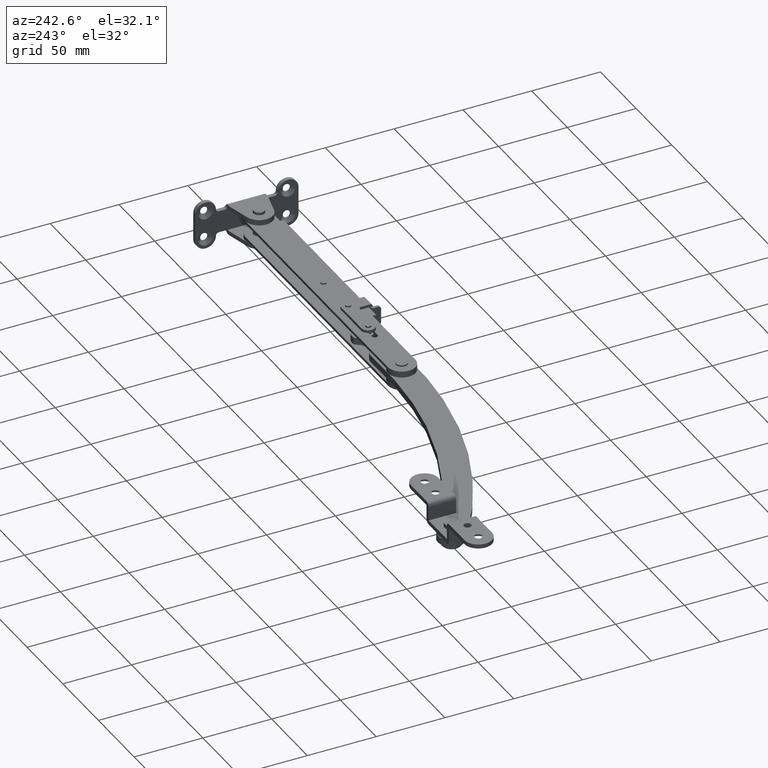
[diagram: clean part render]
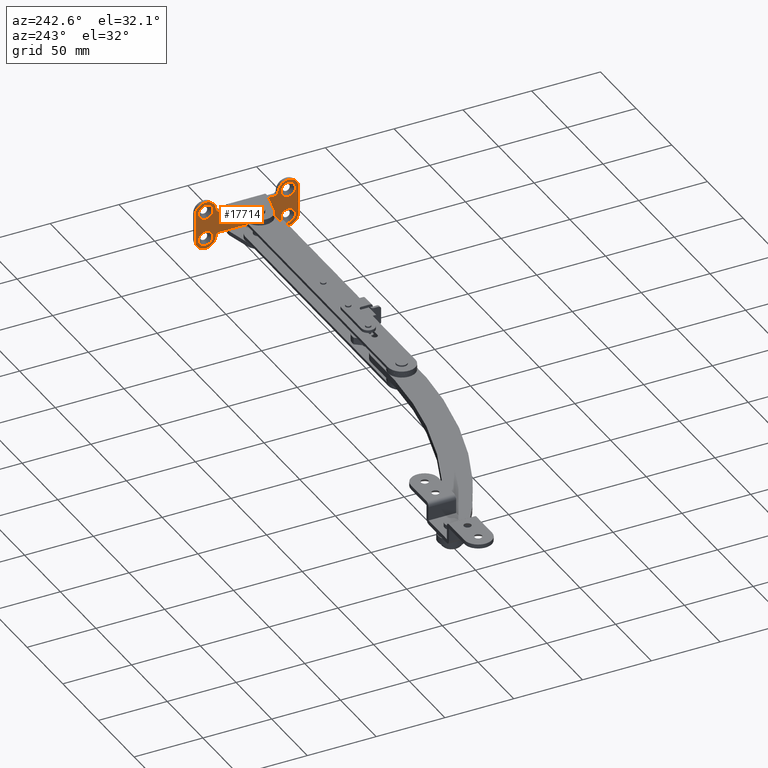
[diagram: same view with one face highlighted and labeled with its STEP entity id]
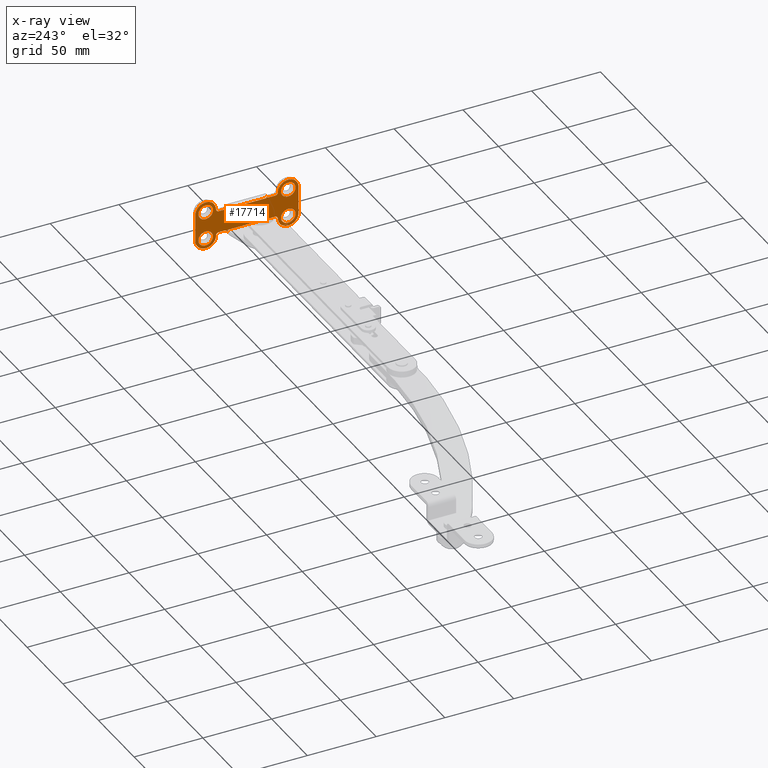
[diagram: x-ray of the same camera — body ghosted, the highlighted face saturated]
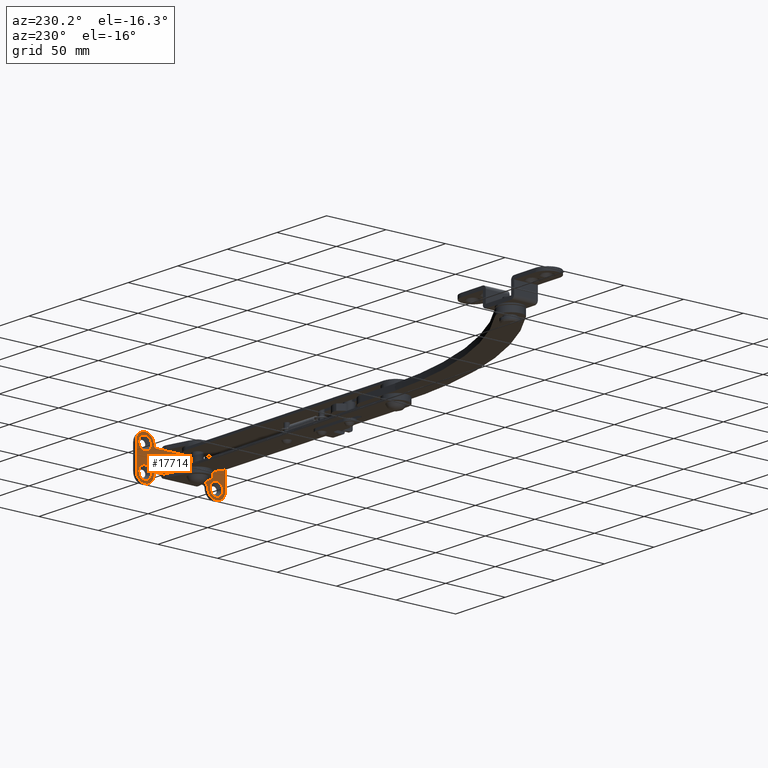
[diagram: same view with one face highlighted and labeled with its STEP entity id]
A machine part, auxiliary view. The second image highlights one B-rep face of the part: STEP entity #17714.
The next image is the same camera in x-ray: the body ghosted, the highlighted face saturated — about 0% of this face is hidden behind the body in this view.
A second angle (auxiliary view) of the same face is appended — the face is thin or edge-on in the first view.
In plain terms, the highlighted face is a freeform B-spline surface patch.
Its self-contained STEP definition (entity closure, byte-faithful):
#14583=CARTESIAN_POINT('',(16.999999998435499,24.716338118710649,-9.584166779639613));
#14584=VERTEX_POINT('',#14583);
#14590=CARTESIAN_POINT('',(17.0,30.0,-4.699999988079189));
#14591=VERTEX_POINT('',#14590);
#14592=CARTESIAN_POINT('',(17.0,30.0,-4.699999988079189));
#14593=CARTESIAN_POINT('',(16.999999999999996,25.100730405412151,-4.699999988079189));
#14594=CARTESIAN_POINT('',(16.999999998435499,24.716338118710645,-9.584166779639613));
#14602=(BOUNDED_CURVE()B_SPLINE_CURVE(2,(#14592,#14593,#14594),.UNSPECIFIED.,.F.,.U.)B_SPLINE_CURVE_WITH_KNOTS((3,3),(0.0,0.236331299857682),.UNSPECIFIED.)CURVE()GEOMETRIC_REPRESENTATION_ITEM()RATIONAL_B_SPLINE_CURVE((1.0,0.723120659513265,0.969723354554272))REPRESENTATION_ITEM(''));
#14603=EDGE_CURVE('',#14591,#14584,#14602,.T.);
#14605=CARTESIAN_POINT('',(16.999999998435499,35.283661881289362,-10.415833220360630));
#14606=VERTEX_POINT('',#14605);
#14607=CARTESIAN_POINT('',(16.999999998435499,35.283661881289355,-10.415833220360637));
#14608=CARTESIAN_POINT('',(16.999999999999996,35.300000011920936,-10.208237579609454));
#14609=CARTESIAN_POINT('',(17.0,35.300000011920929,-10.000000000000121));
#14610=CARTESIAN_POINT('',(17.000000000000007,35.300000011920936,-4.699999988079189));
#14611=CARTESIAN_POINT('',(17.0,30.0,-4.699999988079189));
#14619=(BOUNDED_CURVE()B_SPLINE_CURVE(2,(#14607,#14608,#14609,#14610,#14611),.UNSPECIFIED.,.F.,.U.)B_SPLINE_CURVE_WITH_KNOTS((3,2,3),(0.736331299857682,0.750000000000000,1.0),.UNSPECIFIED.)CURVE()GEOMETRIC_REPRESENTATION_ITEM()RATIONAL_B_SPLINE_CURVE((0.969723354554272,0.983986121673282,1.0,0.707106781186547,1.0))REPRESENTATION_ITEM(''));
#14620=EDGE_CURVE('',#14606,#14591,#14619,.T.);
#14657=CARTESIAN_POINT('',(17.0,30.0,-15.300000011921050));
#14658=VERTEX_POINT('',#14657);
#14659=CARTESIAN_POINT('',(17.0,30.0,-15.300000011921050));
#14660=CARTESIAN_POINT('',(17.000000000000011,34.899269594587849,-15.300000011921050));
#14661=CARTESIAN_POINT('',(16.999999998435502,35.283661881289348,-10.415833220360629));
#14669=(BOUNDED_CURVE()B_SPLINE_CURVE(2,(#14659,#14660,#14661),.UNSPECIFIED.,.F.,.U.)B_SPLINE_CURVE_WITH_KNOTS((3,3),(0.500000000000000,0.736331299857682),.UNSPECIFIED.)CURVE()GEOMETRIC_REPRESENTATION_ITEM()RATIONAL_B_SPLINE_CURVE((1.0,0.723120659513266,0.969723354554272))REPRESENTATION_ITEM(''));
#14670=EDGE_CURVE('',#14658,#14606,#14669,.T.);
#14672=CARTESIAN_POINT('',(16.999999998435495,24.716338118710642,-9.584166779639613));
#14673=CARTESIAN_POINT('',(17.000000000000004,24.699999988079071,-9.791762420390793));
#14674=CARTESIAN_POINT('',(17.0,24.699999988079071,-10.000000000000121));
#14675=CARTESIAN_POINT('',(17.000000000000007,24.699999988079067,-15.300000011921048));
#14676=CARTESIAN_POINT('',(17.0,30.0,-15.300000011921050));
#14684=(BOUNDED_CURVE()B_SPLINE_CURVE(2,(#14672,#14673,#14674,#14675,#14676),.UNSPECIFIED.,.F.,.U.)B_SPLINE_CURVE_WITH_KNOTS((3,2,3),(0.236331299857682,0.250000000000000,0.500000000000000),.UNSPECIFIED.)CURVE()GEOMETRIC_REPRESENTATION_ITEM()RATIONAL_B_SPLINE_CURVE((0.969723354554272,0.983986121673282,1.0,0.707106781186547,1.0))REPRESENTATION_ITEM(''));
#14685=EDGE_CURVE('',#14584,#14658,#14684,.T.);
#14911=CARTESIAN_POINT('',(16.999999998435499,24.716338118710649,10.415833220360510));
#14912=VERTEX_POINT('',#14911);
#14918=CARTESIAN_POINT('',(17.0,30.0,15.300000011920931));
#14919=VERTEX_POINT('',#14918);
#14920=CARTESIAN_POINT('',(17.0,30.0,15.300000011920931));
#14921=CARTESIAN_POINT('',(16.999999999999996,25.100730405412151,15.300000011920927));
#14922=CARTESIAN_POINT('',(16.999999998435499,24.716338118710645,10.415833220360511));
#14930=(BOUNDED_CURVE()B_SPLINE_CURVE(2,(#14920,#14921,#14922),.UNSPECIFIED.,.F.,.U.)B_SPLINE_CURVE_WITH_KNOTS((3,3),(0.0,0.236331299857682),.UNSPECIFIED.)CURVE()GEOMETRIC_REPRESENTATION_ITEM()RATIONAL_B_SPLINE_CURVE((1.0,0.723120659513265,0.969723354554272))REPRESENTATION_ITEM(''));
#14931=EDGE_CURVE('',#14919,#14912,#14930,.T.);
#14933=CARTESIAN_POINT('',(16.999999998435499,35.283661881289362,9.584166779639492));
#14934=VERTEX_POINT('',#14933);
#14935=CARTESIAN_POINT('',(16.999999998435499,35.283661881289355,9.584166779639492));
#14936=CARTESIAN_POINT('',(16.999999999999996,35.300000011920936,9.791762420390668));
#14937=CARTESIAN_POINT('',(17.0,35.300000011920929,10.0));
#14938=CARTESIAN_POINT('',(17.000000000000007,35.300000011920936,15.300000011920934));
#14939=CARTESIAN_POINT('',(17.0,30.0,15.300000011920931));
#14947=(BOUNDED_CURVE()B_SPLINE_CURVE(2,(#14935,#14936,#14937,#14938,#14939),.UNSPECIFIED.,.F.,.U.)B_SPLINE_CURVE_WITH_KNOTS((3,2,3),(0.736331299857682,0.750000000000000,1.0),.UNSPECIFIED.)CURVE()GEOMETRIC_REPRESENTATION_ITEM()RATIONAL_B_SPLINE_CURVE((0.969723354554272,0.983986121673282,1.0,0.707106781186547,1.0))REPRESENTATION_ITEM(''));
#14948=EDGE_CURVE('',#14934,#14919,#14947,.T.);
#14985=CARTESIAN_POINT('',(17.0,30.0,4.699999988079070));
#14986=VERTEX_POINT('',#14985);
#14987=CARTESIAN_POINT('',(17.0,30.0,4.699999988079070));
#14988=CARTESIAN_POINT('',(17.000000000000011,34.899269594587849,4.699999988079071));
#14989=CARTESIAN_POINT('',(16.999999998435502,35.283661881289348,9.584166779639492));
#14997=(BOUNDED_CURVE()B_SPLINE_CURVE(2,(#14987,#14988,#14989),.UNSPECIFIED.,.F.,.U.)B_SPLINE_CURVE_WITH_KNOTS((3,3),(0.500000000000000,0.736331299857682),.UNSPECIFIED.)CURVE()GEOMETRIC_REPRESENTATION_ITEM()RATIONAL_B_SPLINE_CURVE((1.0,0.723120659513266,0.969723354554272))REPRESENTATION_ITEM(''));
#14998=EDGE_CURVE('',#14986,#14934,#14997,.T.);
#15000=CARTESIAN_POINT('',(16.999999998435495,24.716338118710642,10.415833220360510));
#15001=CARTESIAN_POINT('',(17.000000000000004,24.699999988079071,10.208237579609333));
#15002=CARTESIAN_POINT('',(17.0,24.699999988079071,10.0));
#15003=CARTESIAN_POINT('',(17.000000000000007,24.699999988079067,4.699999988079070));
#15004=CARTESIAN_POINT('',(17.0,30.0,4.699999988079070));
#15012=(BOUNDED_CURVE()B_SPLINE_CURVE(2,(#15000,#15001,#15002,#15003,#15004),.UNSPECIFIED.,.F.,.U.)B_SPLINE_CURVE_WITH_KNOTS((3,2,3),(0.236331299857682,0.250000000000000,0.500000000000000),.UNSPECIFIED.)CURVE()GEOMETRIC_REPRESENTATION_ITEM()RATIONAL_B_SPLINE_CURVE((0.969723354554272,0.983986121673282,1.0,0.707106781186547,1.0))REPRESENTATION_ITEM(''));
#15013=EDGE_CURVE('',#14912,#14986,#15012,.T.);
#15258=CARTESIAN_POINT('',(16.999999998614982,-24.737049498336280,-9.374418544008481));
#15259=VERTEX_POINT('',#15258);
#15265=CARTESIAN_POINT('',(17.0,-30.0,-15.300000011921050));
#15266=VERTEX_POINT('',#15265);
#15267=CARTESIAN_POINT('',(16.999999998614982,-24.737049498336283,-9.374418544008481));
#15268=CARTESIAN_POINT('',(17.000000000000004,-24.699999988079067,-9.686112154285182));
#15269=CARTESIAN_POINT('',(17.0,-24.699999988079071,-10.000000000000121));
#15270=CARTESIAN_POINT('',(17.000000000000007,-24.699999988079067,-15.300000011921048));
#15271=CARTESIAN_POINT('',(17.0,-30.0,-15.300000011921050));
#15279=(BOUNDED_CURVE()B_SPLINE_CURVE(2,(#15267,#15268,#15269,#15270,#15271),.UNSPECIFIED.,.F.,.U.)B_SPLINE_CURVE_WITH_KNOTS((3,2,3),(0.229562472825864,0.250000000000000,0.500000000000000),.UNSPECIFIED.)CURVE()GEOMETRIC_REPRESENTATION_ITEM()RATIONAL_B_SPLINE_CURVE((0.956026752835888,0.976055947525520,1.0,0.707106781186547,1.0))REPRESENTATION_ITEM(''));
#15280=EDGE_CURVE('',#15259,#15266,#15279,.T.);
#15282=CARTESIAN_POINT('',(16.999999999730701,-35.290114443681077,-10.323557262278790));
#15283=VERTEX_POINT('',#15282);
#15284=CARTESIAN_POINT('',(17.0,-30.0,-15.300000011921050));
#15285=CARTESIAN_POINT('',(17.000000000000004,-34.985742162037880,-15.300000011921052));
#15286=CARTESIAN_POINT('',(16.999999999730701,-35.290114443681084,-10.323557262278790));
#15294=(BOUNDED_CURVE()B_SPLINE_CURVE(2,(#15284,#15285,#15286),.UNSPECIFIED.,.F.,.U.)B_SPLINE_CURVE_WITH_KNOTS((3,3),(0.500000000000000,0.739332962111518),.UNSPECIFIED.)CURVE()GEOMETRIC_REPRESENTATION_ITEM()RATIONAL_B_SPLINE_CURVE((1.0,0.719603993435998,0.976072041393622))REPRESENTATION_ITEM(''));
#15295=EDGE_CURVE('',#15266,#15283,#15294,.T.);
#15329=CARTESIAN_POINT('',(17.0,-30.0,-4.699999988079189));
#15330=VERTEX_POINT('',#15329);
#15331=CARTESIAN_POINT('',(16.999999999730704,-35.290114443681077,-10.323557262278793));
#15332=CARTESIAN_POINT('',(16.999999999999996,-35.300000011920936,-10.161929647852194));
#15333=CARTESIAN_POINT('',(17.0,-35.300000011920929,-10.000000000000121));
#15334=CARTESIAN_POINT('',(17.000000000000007,-35.300000011920936,-4.699999988079189));
#15335=CARTESIAN_POINT('',(17.0,-30.0,-4.699999988079189));
#15343=(BOUNDED_CURVE()B_SPLINE_CURVE(2,(#15331,#15332,#15333,#15334,#15335),.UNSPECIFIED.,.F.,.U.)B_SPLINE_CURVE_WITH_KNOTS((3,2,3),(0.739332962111518,0.750000000000000,1.0),.UNSPECIFIED.)CURVE()GEOMETRIC_REPRESENTATION_ITEM()RATIONAL_B_SPLINE_CURVE((0.976072041393623,0.987502787750550,1.0,0.707106781186547,1.0))REPRESENTATION_ITEM(''));
#15344=EDGE_CURVE('',#15283,#15330,#15343,.T.);
#15346=CARTESIAN_POINT('',(17.0,-30.0,-4.699999988079189));
#15347=CARTESIAN_POINT('',(17.000000000000011,-25.292675021217910,-4.699999988079189));
#15348=CARTESIAN_POINT('',(16.999999998614982,-24.737049498336287,-9.374418544008481));
#15356=(BOUNDED_CURVE()B_SPLINE_CURVE(2,(#15346,#15347,#15348),.UNSPECIFIED.,.F.,.U.)B_SPLINE_CURVE_WITH_KNOTS((3,3),(0.0,0.229562472825864),.UNSPECIFIED.)CURVE()GEOMETRIC_REPRESENTATION_ITEM()RATIONAL_B_SPLINE_CURVE((1.0,0.731050833661028,0.956026752835888))REPRESENTATION_ITEM(''));
#15357=EDGE_CURVE('',#15330,#15259,#15356,.T.);
#15602=CARTESIAN_POINT('',(16.999999998614982,-24.737049498336280,10.625581455991640));
#15603=VERTEX_POINT('',#15602);
#15609=CARTESIAN_POINT('',(17.0,-30.0,4.699999988079070));
#15610=VERTEX_POINT('',#15609);
#15611=CARTESIAN_POINT('',(16.999999998614982,-24.737049498336283,10.625581455991641));
#15612=CARTESIAN_POINT('',(17.000000000000004,-24.699999988079067,10.313887845714943));
#15613=CARTESIAN_POINT('',(17.0,-24.699999988079071,10.0));
#15614=CARTESIAN_POINT('',(17.000000000000007,-24.699999988079067,4.699999988079070));
#15615=CARTESIAN_POINT('',(17.0,-30.0,4.699999988079070));
#15623=(BOUNDED_CURVE()B_SPLINE_CURVE(2,(#15611,#15612,#15613,#15614,#15615),.UNSPECIFIED.,.F.,.U.)B_SPLINE_CURVE_WITH_KNOTS((3,2,3),(0.229562472825864,0.250000000000000,0.500000000000000),.UNSPECIFIED.)CURVE()GEOMETRIC_REPRESENTATION_ITEM()RATIONAL_B_SPLINE_CURVE((0.956026752835888,0.976055947525520,1.0,0.707106781186547,1.0))REPRESENTATION_ITEM(''));
#15624=EDGE_CURVE('',#15603,#15610,#15623,.T.);
#15626=CARTESIAN_POINT('',(16.999999999730701,-35.290114443681077,9.676442737721327));
#15627=VERTEX_POINT('',#15626);
#15628=CARTESIAN_POINT('',(17.0,-30.0,4.699999988079070));
#15629=CARTESIAN_POINT('',(17.000000000000004,-34.985742162037880,4.699999988079070));
#15630=CARTESIAN_POINT('',(16.999999999730701,-35.290114443681084,9.676442737721327));
#15638=(BOUNDED_CURVE()B_SPLINE_CURVE(2,(#15628,#15629,#15630),.UNSPECIFIED.,.F.,.U.)B_SPLINE_CURVE_WITH_KNOTS((3,3),(0.500000000000000,0.739332962111518),.UNSPECIFIED.)CURVE()GEOMETRIC_REPRESENTATION_ITEM()RATIONAL_B_SPLINE_CURVE((1.0,0.719603993435998,0.976072041393622))REPRESENTATION_ITEM(''));
#15639=EDGE_CURVE('',#15610,#15627,#15638,.T.);
#15673=CARTESIAN_POINT('',(17.0,-30.0,15.300000011920931));
#15674=VERTEX_POINT('',#15673);
#15675=CARTESIAN_POINT('',(16.999999999730704,-35.290114443681077,9.676442737721327));
#15676=CARTESIAN_POINT('',(17.0,-35.300000011920929,9.838070352147918));
#15677=CARTESIAN_POINT('',(17.0,-35.300000011920929,10.0));
#15678=CARTESIAN_POINT('',(17.000000000000007,-35.300000011920936,15.300000011920934));
#15679=CARTESIAN_POINT('',(17.0,-30.0,15.300000011920931));
#15687=(BOUNDED_CURVE()B_SPLINE_CURVE(2,(#15675,#15676,#15677,#15678,#15679),.UNSPECIFIED.,.F.,.U.)B_SPLINE_CURVE_WITH_KNOTS((3,2,3),(0.739332962111518,0.750000000000000,1.0),.UNSPECIFIED.)CURVE()GEOMETRIC_REPRESENTATION_ITEM()RATIONAL_B_SPLINE_CURVE((0.976072041393622,0.987502787750550,1.0,0.707106781186547,1.0))REPRESENTATION_ITEM(''));
#15688=EDGE_CURVE('',#15627,#15674,#15687,.T.);
#15690=CARTESIAN_POINT('',(17.0,-30.0,15.300000011920931));
#15691=CARTESIAN_POINT('',(17.000000000000011,-25.292675021217910,15.300000011920929));
#15692=CARTESIAN_POINT('',(16.999999998614982,-24.737049498336276,10.625581455991641));
#15700=(BOUNDED_CURVE()B_SPLINE_CURVE(2,(#15690,#15691,#15692),.UNSPECIFIED.,.F.,.U.)B_SPLINE_CURVE_WITH_KNOTS((3,3),(0.0,0.229562472825864),.UNSPECIFIED.)CURVE()GEOMETRIC_REPRESENTATION_ITEM()RATIONAL_B_SPLINE_CURVE((1.0,0.731050833661028,0.956026752835888))REPRESENTATION_ITEM(''));
#15701=EDGE_CURVE('',#15674,#15603,#15700,.T.);
#16477=CARTESIAN_POINT('',(17.0,-14.0,8.0));
#16478=VERTEX_POINT('',#16477);
#16487=CARTESIAN_POINT('',(17.0,14.0,8.0));
#16488=VERTEX_POINT('',#16487);
#16494=CARTESIAN_POINT('',(17.0,-14.0,8.0));
#16495=CARTESIAN_POINT('',(17.0,14.0,8.0));
#16496=QUASI_UNIFORM_CURVE('',1,(#16494,#16495),.UNSPECIFIED.,.F.,.U.);
#16497=EDGE_CURVE('',#16478,#16488,#16496,.T.);
#16638=CARTESIAN_POINT('',(17.0,14.0,-8.0));
#16639=VERTEX_POINT('',#16638);
#16648=CARTESIAN_POINT('',(17.0,-14.0,-8.0));
#16649=VERTEX_POINT('',#16648);
#16655=CARTESIAN_POINT('',(17.0,14.0,-8.0));
#16656=CARTESIAN_POINT('',(17.0,-14.0,-8.0));
#16657=QUASI_UNIFORM_CURVE('',1,(#16655,#16656),.UNSPECIFIED.,.F.,.U.);
#16658=EDGE_CURVE('',#16639,#16649,#16657,.T.);
#16700=CARTESIAN_POINT('',(17.0,22.500000000000000,9.999999345501529));
#16701=VERTEX_POINT('',#16700);
#16707=CARTESIAN_POINT('',(17.0,20.499999965093451,8.0));
#16708=VERTEX_POINT('',#16707);
#16709=CARTESIAN_POINT('',(17.0,22.500000000000000,9.999999345501529));
#16710=CARTESIAN_POINT('',(17.0,22.499999345501635,7.999999965093461));
#16711=CARTESIAN_POINT('',(17.0,20.499999965093451,8.0));
#16719=(BOUNDED_CURVE()B_SPLINE_CURVE(2,(#16709,#16710,#16711),.UNSPECIFIED.,.F.,.U.)CURVE()GEOMETRIC_REPRESENTATION_ITEM()QUASI_UNIFORM_CURVE()RATIONAL_B_SPLINE_CURVE((1.0,0.707106890715951,1.0))REPRESENTATION_ITEM(''));
#16720=EDGE_CURVE('',#16701,#16708,#16719,.T.);
#16767=CARTESIAN_POINT('',(17.0,37.500000000000000,10.0));
#16768=VERTEX_POINT('',#16767);
#16774=CARTESIAN_POINT('',(17.0,22.500000000000028,9.999999345501530));
#16775=CARTESIAN_POINT('',(17.000000000000004,22.499999622125145,14.330126509867814));
#16776=CARTESIAN_POINT('',(17.0,26.249999622125141,16.495190310217119));
#16777=CARTESIAN_POINT('',(17.000000000000004,29.999999622125124,18.660254110566438));
#16778=CARTESIAN_POINT('',(17.0,33.749999811062558,16.495190637466369));
#16779=CARTESIAN_POINT('',(17.000000000000004,37.500000000000000,14.330127164366299));
#16780=CARTESIAN_POINT('',(17.0,37.500000000000000,10.0));
#16788=(BOUNDED_CURVE()B_SPLINE_CURVE(2,(#16774,#16775,#16776,#16777,#16778,#16779,#16780),.UNSPECIFIED.,.F.,.U.)B_SPLINE_CURVE_WITH_KNOTS((3,2,2,3),(0.0,0.333333333333333,0.666666666666667,1.0),.UNSPECIFIED.)CURVE()GEOMETRIC_REPRESENTATION_ITEM()RATIONAL_B_SPLINE_CURVE((1.0,0.866025396512233,1.0,0.866025396512233,1.0,0.866025396512233,1.0))REPRESENTATION_ITEM(''));
#16789=EDGE_CURVE('',#16701,#16768,#16788,.T.);
#16807=CARTESIAN_POINT('',(17.0,37.500000000000000,-10.000000654498599));
#16808=VERTEX_POINT('',#16807);
#16814=CARTESIAN_POINT('',(17.0,37.500000000000000,-10.000000654498599));
#16815=CARTESIAN_POINT('',(17.0,37.500000000000000,10.0));
#16816=QUASI_UNIFORM_CURVE('',1,(#16814,#16815),.UNSPECIFIED.,.F.,.U.);
#16817=EDGE_CURVE('',#16808,#16768,#16816,.T.);
#16858=CARTESIAN_POINT('',(17.0,22.500000000000000,-10.000000174533040));
#16859=VERTEX_POINT('',#16858);
#16865=CARTESIAN_POINT('',(17.0,37.499999999999972,-10.000000654498599));
#16866=CARTESIAN_POINT('',(16.999999999999993,37.499999345501536,-17.500000239982878));
#16867=CARTESIAN_POINT('',(17.0,29.999999760017221,-17.500000000000121));
#16868=CARTESIAN_POINT('',(16.999999999999993,22.500000174532911,-17.499999760017346));
#16869=CARTESIAN_POINT('',(17.0,22.500000000000000,-10.000000174533040));
#16877=(BOUNDED_CURVE()B_SPLINE_CURVE(2,(#16865,#16866,#16867,#16868,#16869),.UNSPECIFIED.,.F.,.U.)B_SPLINE_CURVE_WITH_KNOTS((3,2,3),(0.0,0.500000000000000,1.0),.UNSPECIFIED.)CURVE()GEOMETRIC_REPRESENTATION_ITEM()RATIONAL_B_SPLINE_CURVE((1.0,0.707106800727005,1.0,0.707106800727005,1.0))REPRESENTATION_ITEM(''));
#16878=EDGE_CURVE('',#16808,#16859,#16877,.T.);
#16915=CARTESIAN_POINT('',(17.0,20.500000000000000,-8.0));
#16916=VERTEX_POINT('',#16915);
#16922=CARTESIAN_POINT('',(17.0,20.500000000000000,-8.0));
#16923=CARTESIAN_POINT('',(17.0,21.328427175865702,-8.000000000000119));
#16924=CARTESIAN_POINT('',(17.0,21.914213624079800,-8.585786499333732));
#16925=CARTESIAN_POINT('',(17.0,22.500000072293908,-9.171572998667344));
#16926=CARTESIAN_POINT('',(17.0,22.499999999999989,-10.000000174533040));
#16934=(BOUNDED_CURVE()B_SPLINE_CURVE(2,(#16922,#16923,#16924,#16925,#16926),.UNSPECIFIED.,.F.,.U.)B_SPLINE_CURVE_WITH_KNOTS((3,2,3),(0.0,0.500000000000000,1.0),.UNSPECIFIED.)CURVE()GEOMETRIC_REPRESENTATION_ITEM()RATIONAL_B_SPLINE_CURVE((1.0,0.923879524162429,1.0,0.923879524162429,1.0))REPRESENTATION_ITEM(''));
#16935=EDGE_CURVE('',#16916,#16859,#16934,.T.);
#16951=CARTESIAN_POINT('',(17.0,15.999999860373700,-8.000000000000119));
#16952=VERTEX_POINT('',#16951);
#16958=CARTESIAN_POINT('',(17.0,15.999999860373700,-8.000000000000119));
#16959=CARTESIAN_POINT('',(17.0,20.500000000000000,-8.0));
#16960=QUASI_UNIFORM_CURVE('',1,(#16958,#16959),.UNSPECIFIED.,.F.,.U.);
#16961=EDGE_CURVE('',#16952,#16916,#16960,.T.);
#16981=CARTESIAN_POINT('',(17.0,14.0,-10.000000000000121));
#16982=VERTEX_POINT('',#16981);
#16988=CARTESIAN_POINT('',(17.0,14.0,-10.000000000000121));
#16989=CARTESIAN_POINT('',(16.999999999999996,13.999999999999998,-8.000000139626415));
#16990=CARTESIAN_POINT('',(17.0,15.999999860373700,-8.000000000000124));
#16998=(BOUNDED_CURVE()B_SPLINE_CURVE(2,(#16988,#16989,#16990),.UNSPECIFIED.,.F.,.U.)CURVE()GEOMETRIC_REPRESENTATION_ITEM()QUASI_UNIFORM_CURVE()RATIONAL_B_SPLINE_CURVE((1.0,0.707106805869223,1.0))REPRESENTATION_ITEM(''));
#16999=EDGE_CURVE('',#16982,#16952,#16998,.T.);
#17018=CARTESIAN_POINT('',(17.0,14.0,-8.0));
#17019=CARTESIAN_POINT('',(17.0,14.0,-10.000000000000121));
#17020=QUASI_UNIFORM_CURVE('',1,(#17018,#17019),.UNSPECIFIED.,.F.,.U.);
#17021=EDGE_CURVE('',#16639,#16982,#17020,.T.);
#17057=CARTESIAN_POINT('',(17.0,-14.0,-10.000000174533040));
#17058=VERTEX_POINT('',#17057);
#17064=CARTESIAN_POINT('',(17.0,-14.0,-10.000000174533040));
#17065=CARTESIAN_POINT('',(17.0,-14.0,-8.0));
#17066=QUASI_UNIFORM_CURVE('',1,(#17064,#17065),.UNSPECIFIED.,.F.,.U.);
#17067=EDGE_CURVE('',#17058,#16649,#17066,.T.);
#17090=CARTESIAN_POINT('',(17.0,-16.0,-8.0));
#17091=VERTEX_POINT('',#17090);
#17097=CARTESIAN_POINT('',(17.0,-16.0,-8.0));
#17098=CARTESIAN_POINT('',(16.999999999999996,-15.171572824134273,-8.000000000000002));
#17099=CARTESIAN_POINT('',(17.0,-14.585786375920160,-8.585786499333654));
#17100=CARTESIAN_POINT('',(16.999999999999996,-13.999999927706048,-9.171572998667310));
#17101=CARTESIAN_POINT('',(17.0,-14.000000000000011,-10.000000174533040));
#17109=(BOUNDED_CURVE()B_SPLINE_CURVE(2,(#17097,#17098,#17099,#17100,#17101),.UNSPECIFIED.,.F.,.U.)B_SPLINE_CURVE_WITH_KNOTS((3,2,3),(0.0,0.500000000000000,1.0),.UNSPECIFIED.)CURVE()GEOMETRIC_REPRESENTATION_ITEM()RATIONAL_B_SPLINE_CURVE((1.0,0.923879524162424,1.0,0.923879524162424,1.0))REPRESENTATION_ITEM(''));
#17110=EDGE_CURVE('',#17091,#17058,#17109,.T.);
#17129=CARTESIAN_POINT('',(17.0,-20.500000139626248,-8.000000000000119));
#17130=VERTEX_POINT('',#17129);
#17136=CARTESIAN_POINT('',(17.0,-20.500000139626248,-8.000000000000119));
#17137=CARTESIAN_POINT('',(17.0,-16.0,-8.0));
#17138=QUASI_UNIFORM_CURVE('',1,(#17136,#17137),.UNSPECIFIED.,.F.,.U.);
#17139=EDGE_CURVE('',#17130,#17091,#17138,.T.);
#17176=CARTESIAN_POINT('',(17.0,-22.500000000000000,-10.000000654498580));
#17177=VERTEX_POINT('',#17176);
#17183=CARTESIAN_POINT('',(17.0,-22.500000000000000,-10.000000654498580));
#17184=CARTESIAN_POINT('',(16.999999999999996,-22.500000271102142,-9.171573378949816));
#17185=CARTESIAN_POINT('',(17.0,-21.914213843138590,-8.585786718392459));
#17186=CARTESIAN_POINT('',(16.999999999999996,-21.328427415175053,-8.000000057835102));
#17187=CARTESIAN_POINT('',(17.0,-20.500000139626248,-8.000000000000119));
#17195=(BOUNDED_CURVE()B_SPLINE_CURVE(2,(#17183,#17184,#17185,#17186,#17187),.UNSPECIFIED.,.F.,.U.)B_SPLINE_CURVE_WITH_KNOTS((3,2,3),(0.0,0.500000000000000,1.0),.UNSPECIFIED.)CURVE()GEOMETRIC_REPRESENTATION_ITEM()RATIONAL_B_SPLINE_CURVE((1.0,0.923879507882146,1.0,0.923879507882146,1.0))REPRESENTATION_ITEM(''));
#17196=EDGE_CURVE('',#17177,#17130,#17195,.T.);
#17237=CARTESIAN_POINT('',(17.0,-37.500000000000000,-10.0));
#17238=VERTEX_POINT('',#17237);
#17244=CARTESIAN_POINT('',(17.0,-22.500000000000028,-10.000000654498580));
#17245=CARTESIAN_POINT('',(16.999999999999993,-22.500000654498574,-17.500000327249271));
#17246=CARTESIAN_POINT('',(17.0,-30.000000327249289,-17.499999999999989));
#17247=CARTESIAN_POINT('',(16.999999999999993,-37.499999999999993,-17.499999672750707));
#17248=CARTESIAN_POINT('',(17.0,-37.500000000000000,-10.0));
#17256=(BOUNDED_CURVE()B_SPLINE_CURVE(2,(#17244,#17245,#17246,#17247,#17248),.UNSPECIFIED.,.F.,.U.)B_SPLINE_CURVE_WITH_KNOTS((3,2,3),(0.0,0.500000000000000,1.0),.UNSPECIFIED.)CURVE()GEOMETRIC_REPRESENTATION_ITEM()RATIONAL_B_SPLINE_CURVE((1.0,0.707106796613227,1.0,0.707106796613227,1.0))REPRESENTATION_ITEM(''));
#17257=EDGE_CURVE('',#17177,#17238,#17256,.T.);
#17275=CARTESIAN_POINT('',(17.0,-37.500000000000000,9.999999345501539));
#17276=VERTEX_POINT('',#17275);
#17282=CARTESIAN_POINT('',(17.0,-37.500000000000000,9.999999345501539));
#17283=CARTESIAN_POINT('',(17.0,-37.500000000000000,-10.0));
#17284=QUASI_UNIFORM_CURVE('',1,(#17282,#17283),.UNSPECIFIED.,.F.,.U.);
#17285=EDGE_CURVE('',#17276,#17238,#17284,.T.);
#17328=CARTESIAN_POINT('',(17.0,-22.500000000000000,10.000000174532920));
#17329=VERTEX_POINT('',#17328);
#17335=CARTESIAN_POINT('',(17.0,-37.499999999999972,9.999999345501538));
#17336=CARTESIAN_POINT('',(17.0,-37.500000377874841,14.330126471082718));
#17337=CARTESIAN_POINT('',(17.0,-33.750000428258168,16.495190281128298));
#17338=CARTESIAN_POINT('',(17.0,-30.000000478641496,18.660254091173876));
#17339=CARTESIAN_POINT('',(17.0,-26.250000289704069,16.495190695643998));
#17340=CARTESIAN_POINT('',(17.0,-22.500000100766634,14.330127300114130));
#17341=CARTESIAN_POINT('',(17.0,-22.500000000000000,10.000000174532920));
#17349=(BOUNDED_CURVE()B_SPLINE_CURVE(2,(#17335,#17336,#17337,#17338,#17339,#17340,#17341),.UNSPECIFIED.,.F.,.U.)B_SPLINE_CURVE_WITH_KNOTS((3,2,2,3),(0.0,0.333333333333333,0.666666666666667,1.0),.UNSPECIFIED.)CURVE()GEOMETRIC_REPRESENTATION_ITEM()RATIONAL_B_SPLINE_CURVE((1.0,0.866025398451488,1.0,0.866025398451488,1.0,0.866025398451488,1.0))REPRESENTATION_ITEM(''));
#17350=EDGE_CURVE('',#17276,#17329,#17349,.T.);
#17387=CARTESIAN_POINT('',(17.0,-20.500000000000000,7.999999999999889));
#17388=VERTEX_POINT('',#17387);
#17394=CARTESIAN_POINT('',(17.0,-20.500000000000000,7.999999999999889));
#17395=CARTESIAN_POINT('',(17.0,-21.328427175865706,8.0));
#17396=CARTESIAN_POINT('',(17.0,-21.914213624079800,8.585786499333613));
#17397=CARTESIAN_POINT('',(17.0,-22.500000072293904,9.171572998667223));
#17398=CARTESIAN_POINT('',(17.0,-22.499999999999989,10.000000174532920));
#17406=(BOUNDED_CURVE()B_SPLINE_CURVE(2,(#17394,#17395,#17396,#17397,#17398),.UNSPECIFIED.,.F.,.U.)B_SPLINE_CURVE_WITH_KNOTS((3,2,3),(0.0,0.500000000000000,1.0),.UNSPECIFIED.)CURVE()GEOMETRIC_REPRESENTATION_ITEM()RATIONAL_B_SPLINE_CURVE((1.0,0.923879524162429,1.0,0.923879524162429,1.0))REPRESENTATION_ITEM(''));
#17407=EDGE_CURVE('',#17388,#17329,#17406,.T.);
#17423=CARTESIAN_POINT('',(17.0,-16.000000034906599,8.0));
#17424=VERTEX_POINT('',#17423);
#17430=CARTESIAN_POINT('',(17.0,-16.000000034906599,8.0));
#17431=CARTESIAN_POINT('',(17.0,-20.500000000000000,7.999999999999889));
#17432=QUASI_UNIFORM_CURVE('',1,(#17430,#17431),.UNSPECIFIED.,.F.,.U.);
#17433=EDGE_CURVE('',#17424,#17388,#17432,.T.);
#17453=CARTESIAN_POINT('',(17.0,-14.0,10.0));
#17454=VERTEX_POINT('',#17453);
#17460=CARTESIAN_POINT('',(17.0,-14.0,10.0));
#17461=CARTESIAN_POINT('',(17.0,-14.000000000000005,9.171572865029905));
#17462=CARTESIAN_POINT('',(17.0,-14.585786449968250,8.585786425285560));
#17463=CARTESIAN_POINT('',(17.0,-15.171572899936498,7.999999985541214));
#17464=CARTESIAN_POINT('',(17.0,-16.000000034906599,8.0));
#17472=(BOUNDED_CURVE()B_SPLINE_CURVE(2,(#17460,#17461,#17462,#17463,#17464),.UNSPECIFIED.,.F.,.U.)B_SPLINE_CURVE_WITH_KNOTS((3,2,3),(0.0,0.500000000000000,1.0),.UNSPECIFIED.)CURVE()GEOMETRIC_REPRESENTATION_ITEM()RATIONAL_B_SPLINE_CURVE((1.0,0.923879530841515,1.0,0.923879530841515,1.0))REPRESENTATION_ITEM(''));
#17473=EDGE_CURVE('',#17454,#17424,#17472,.T.);
#17492=CARTESIAN_POINT('',(17.0,-14.0,8.0));
#17493=CARTESIAN_POINT('',(17.0,-14.0,10.0));
#17494=QUASI_UNIFORM_CURVE('',1,(#17492,#17493),.UNSPECIFIED.,.F.,.U.);
#17495=EDGE_CURVE('',#16478,#17454,#17494,.T.);
#17531=CARTESIAN_POINT('',(17.0,14.0,10.000000174532920));
#17532=VERTEX_POINT('',#17531);
#17538=CARTESIAN_POINT('',(17.0,14.0,10.000000174532920));
#17539=CARTESIAN_POINT('',(17.0,14.0,8.0));
#17540=QUASI_UNIFORM_CURVE('',1,(#17538,#17539),.UNSPECIFIED.,.F.,.U.);
#17541=EDGE_CURVE('',#17532,#16488,#17540,.T.);
#17564=CARTESIAN_POINT('',(17.0,15.999999860373700,8.0));
#17565=VERTEX_POINT('',#17564);
#17571=CARTESIAN_POINT('',(17.0,15.999999860373700,8.000000000000005));
#17572=CARTESIAN_POINT('',(17.000000000000004,15.171572725403601,8.000000057835113));
#17573=CARTESIAN_POINT('',(17.0,14.585786326554850,8.585786548698966));
#17574=CARTESIAN_POINT('',(17.000000000000004,13.999999927706106,9.171573039562821));
#17575=CARTESIAN_POINT('',(17.0,14.000000000000011,10.000000174532920));
#17583=(BOUNDED_CURVE()B_SPLINE_CURVE(2,(#17571,#17572,#17573,#17574,#17575),.UNSPECIFIED.,.F.,.U.)B_SPLINE_CURVE_WITH_KNOTS((3,2,3),(0.0,0.500000000000000,1.0),.UNSPECIFIED.)CURVE()GEOMETRIC_REPRESENTATION_ITEM()RATIONAL_B_SPLINE_CURVE((1.0,0.923879530841513,1.0,0.923879530841513,1.0))REPRESENTATION_ITEM(''));
#17584=EDGE_CURVE('',#17565,#17532,#17583,.T.);
#17602=CARTESIAN_POINT('',(17.0,20.499999965093451,8.0));
#17603=CARTESIAN_POINT('',(17.0,15.999999860373700,8.0));
#17604=QUASI_UNIFORM_CURVE('',1,(#17602,#17603),.UNSPECIFIED.,.F.,.U.);
#17605=EDGE_CURVE('',#16708,#17565,#17604,.T.);
#17659=CARTESIAN_POINT('',(17.0,41.246249854635451,-19.248249932157989));
#17660=CARTESIAN_POINT('',(17.0,-41.246251866292212,-19.248249932157989));
#17661=CARTESIAN_POINT('',(17.0,41.246249854635451,19.248250870936118));
#17662=CARTESIAN_POINT('',(17.0,-41.246251866292212,19.248250870936118));
#17663=B_SPLINE_SURFACE_WITH_KNOTS('',1,1,((#17659,#17661),(#17660,#17662)),.UNSPECIFIED.,.F.,.F.,.U.,(2,2),(2,2),(0.0,82.492501720927663),(0.0,38.496500803094108),.UNSPECIFIED.);
#17664=ORIENTED_EDGE('',*,*,#16497,.T.);
#17665=ORIENTED_EDGE('',*,*,#17541,.F.);
#17666=ORIENTED_EDGE('',*,*,#17584,.F.);
#17667=ORIENTED_EDGE('',*,*,#17605,.F.);
#17668=ORIENTED_EDGE('',*,*,#16720,.F.);
#17669=ORIENTED_EDGE('',*,*,#16789,.T.);
#17670=ORIENTED_EDGE('',*,*,#16817,.F.);
#17671=ORIENTED_EDGE('',*,*,#16878,.T.);
#17672=ORIENTED_EDGE('',*,*,#16935,.F.);
#17673=ORIENTED_EDGE('',*,*,#16961,.F.);
#17674=ORIENTED_EDGE('',*,*,#16999,.F.);
#17675=ORIENTED_EDGE('',*,*,#17021,.F.);
#17676=ORIENTED_EDGE('',*,*,#16658,.T.);
#17677=ORIENTED_EDGE('',*,*,#17067,.F.);
#17678=ORIENTED_EDGE('',*,*,#17110,.F.);
#17679=ORIENTED_EDGE('',*,*,#17139,.F.);
#17680=ORIENTED_EDGE('',*,*,#17196,.F.);
#17681=ORIENTED_EDGE('',*,*,#17257,.T.);
#17682=ORIENTED_EDGE('',*,*,#17285,.F.);
#17683=ORIENTED_EDGE('',*,*,#17350,.T.);
#17684=ORIENTED_EDGE('',*,*,#17407,.F.);
#17685=ORIENTED_EDGE('',*,*,#17433,.F.);
#17686=ORIENTED_EDGE('',*,*,#17473,.F.);
#17687=ORIENTED_EDGE('',*,*,#17495,.F.);
#17688=EDGE_LOOP('',(#17664,#17665,#17666,#17667,#17668,#17669,#17670,#17671,#17672,#17673,#17674,#17675,#17676,#17677,#17678,#17679,#17680,#17681,#17682,#17683,#17684,#17685,#17686,#17687));
#17689=FACE_OUTER_BOUND('',#17688,.T.);
#17690=ORIENTED_EDGE('',*,*,#15639,.F.);
#17691=ORIENTED_EDGE('',*,*,#15624,.F.);
#17692=ORIENTED_EDGE('',*,*,#15701,.F.);
#17693=ORIENTED_EDGE('',*,*,#15688,.F.);
#17694=EDGE_LOOP('',(#17690,#17691,#17692,#17693));
#17695=FACE_BOUND('',#17694,.T.);
#17696=ORIENTED_EDGE('',*,*,#15295,.F.);
#17697=ORIENTED_EDGE('',*,*,#15280,.F.);
#17698=ORIENTED_EDGE('',*,*,#15357,.F.);
#17699=ORIENTED_EDGE('',*,*,#15344,.F.);
#17700=EDGE_LOOP('',(#17696,#17697,#17698,#17699));
#17701=FACE_BOUND('',#17700,.T.);
#17702=ORIENTED_EDGE('',*,*,#14998,.T.);
#17703=ORIENTED_EDGE('',*,*,#14948,.T.);
#17704=ORIENTED_EDGE('',*,*,#14931,.T.);
#17705=ORIENTED_EDGE('',*,*,#15013,.T.);
#17706=EDGE_LOOP('',(#17702,#17703,#17704,#17705));
#17707=FACE_BOUND('',#17706,.T.);
#17708=ORIENTED_EDGE('',*,*,#14670,.T.);
#17709=ORIENTED_EDGE('',*,*,#14620,.T.);
#17710=ORIENTED_EDGE('',*,*,#14603,.T.);
#17711=ORIENTED_EDGE('',*,*,#14685,.T.);
#17712=EDGE_LOOP('',(#17708,#17709,#17710,#17711));
#17713=FACE_BOUND('',#17712,.T.);
#17714=ADVANCED_FACE('',(#17689,#17695,#17701,#17707,#17713),#17663,.T.);